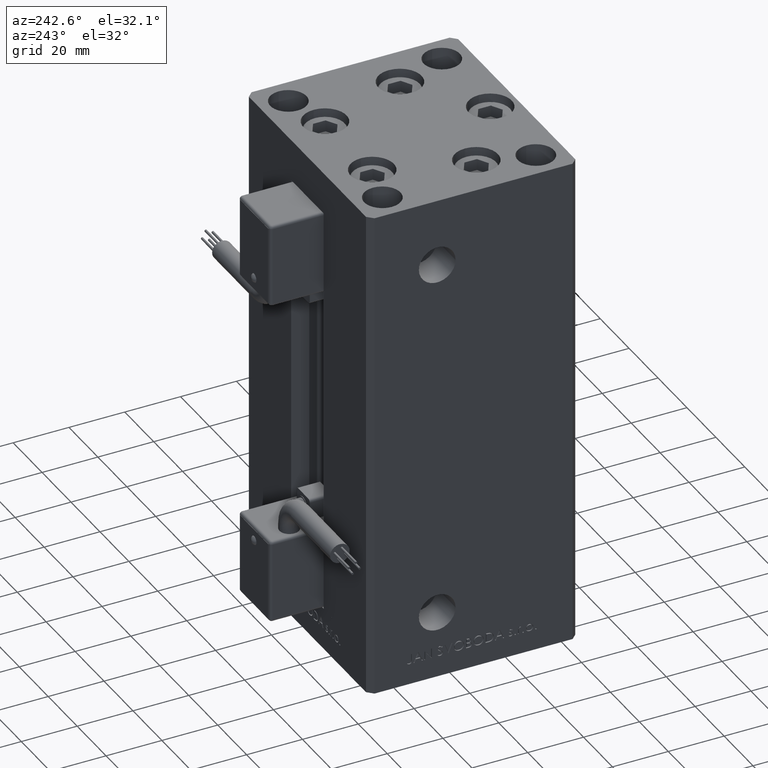
[diagram: clean part render]
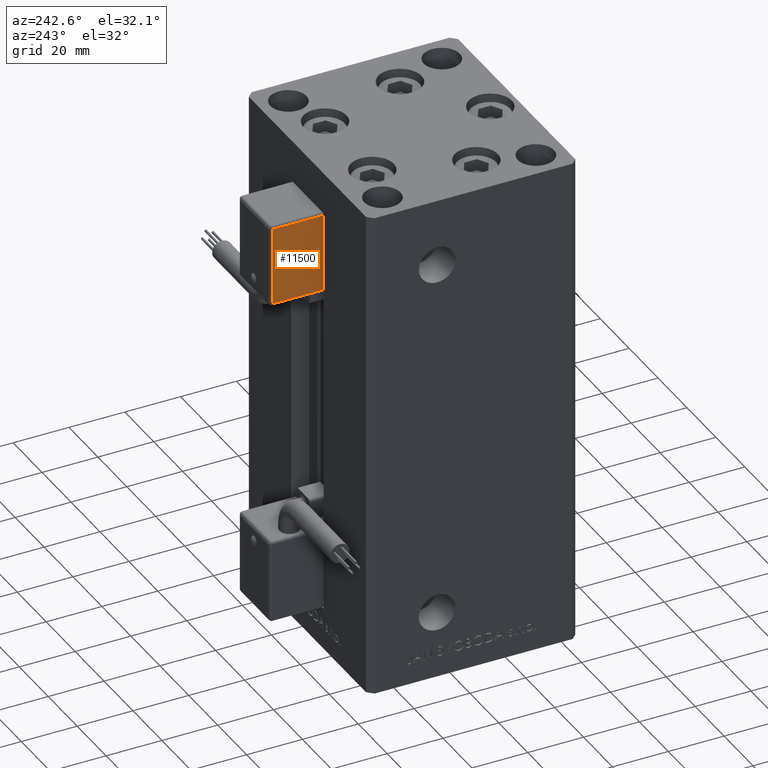
[diagram: same view with one face highlighted and labeled with its STEP entity id]
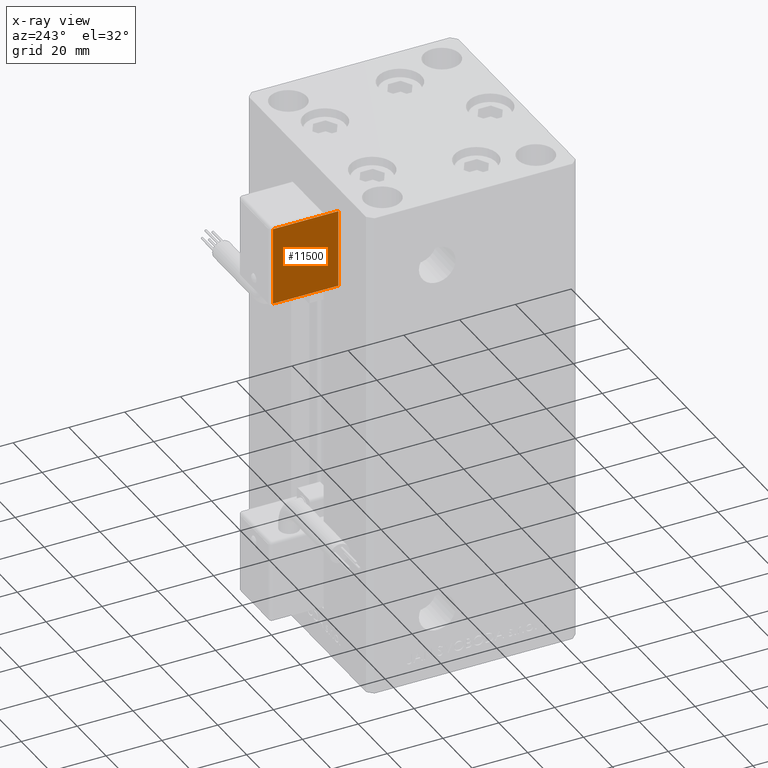
[diagram: x-ray of the same camera — body ghosted, the highlighted face saturated]
A machine part, auxiliary view. The second image highlights one B-rep face of the part: STEP entity #11500.
The next image is the same camera in x-ray: the body ghosted, the highlighted face saturated — about 0% of this face is hidden behind the body in this view.
In plain terms, the highlighted planar face has unit normal (1, 0, 0).
Its self-contained STEP definition (entity closure, byte-faithful):
#939 = ORIENTED_EDGE ( 'NONE', *, *, #18885, .T. ) ;
#1921 = CARTESIAN_POINT ( 'NONE',  ( -10.80000000000000071, 26.00000000000000000, -54.00000000000000000 ) ) ;
#2919 = VERTEX_POINT ( 'NONE', #36429 ) ;
#10824 = ORIENTED_EDGE ( 'NONE', *, *, #25612, .T. ) ;
#11125 = VECTOR ( 'NONE', #38020, 1000.000000000000000 ) ;
#11500 = ADVANCED_FACE ( 'NONE', ( #14323 ), #14586, .F. ) ;
#11527 = EDGE_CURVE ( 'NONE', #2919, #48353, #39642, .T. ) ;
#14323 = FACE_OUTER_BOUND ( 'NONE', #51347, .T. ) ;
#14586 = PLANE ( 'NONE',  #27951 ) ;
#15203 = DIRECTION ( 'NONE',  ( 3.108624468950000014E-32, -1.000000000000000000, -1.400000000000000069E-16 ) ) ;
#16022 = VECTOR ( 'NONE', #22856, 1000.000000000000000 ) ;
#17336 = DIRECTION ( 'NONE',  ( -3.108624468950000014E-32, 1.000000000000000000, 1.400000000000000069E-16 ) ) ;
#18086 = VERTEX_POINT ( 'NONE', #42350 ) ;
#18203 = ORIENTED_EDGE ( 'NONE', *, *, #11527, .T. ) ;
#18885 = EDGE_CURVE ( 'NONE', #23896, #18086, #29767, .T. ) ;
#21337 = CARTESIAN_POINT ( 'NONE',  ( -10.80000000000000071, 26.00000000000000000, -26.00000000000000000 ) ) ;
#22856 = DIRECTION ( 'NONE',  ( -2.220446049250000002E-16, -1.200000000000000024E-16, 1.000000000000000000 ) ) ;
#23896 = VERTEX_POINT ( 'NONE', #33367 ) ;
#24302 = VECTOR ( 'NONE', #17336, 1000.000000000000000 ) ;
#25337 = LINE ( 'NONE', #21337, #24302 ) ;
#25612 = EDGE_CURVE ( 'NONE', #18086, #2919, #30409, .T. ) ;
#27381 = CARTESIAN_POINT ( 'NONE',  ( -10.80000000000000071, 26.00000000000000000, -55.00000000000000000 ) ) ;
#27417 = VECTOR ( 'NONE', #15203, 1000.000000000000000 ) ;
#27951 = AXIS2_PLACEMENT_3D ( 'NONE', #27381, #30851, #43644 ) ;
#29767 = LINE ( 'NONE', #42003, #11125 ) ;
#30409 = LINE ( 'NONE', #1921, #27417 ) ;
#30851 = DIRECTION ( 'NONE',  ( 1.000000000000000000, 4.930380657629929601E-32, 1.094764425253299406E-47 ) ) ;
#33170 = ORIENTED_EDGE ( 'NONE', *, *, #49680, .T. ) ;
#33198 = CARTESIAN_POINT ( 'NONE',  ( -10.80000000000000071, 27.00000000000000000, -26.00000000000000000 ) ) ;
#33367 = CARTESIAN_POINT ( 'NONE',  ( -10.80000000000000071, 50.50000000000000000, -26.00000000000000000 ) ) ;
#36429 = CARTESIAN_POINT ( 'NONE',  ( -10.80000000000000071, 27.00000000000000000, -54.00000000000000000 ) ) ;
#38020 = DIRECTION ( 'NONE',  ( 2.220446049250000002E-16, 1.200000000000000024E-16, -1.000000000000000000 ) ) ;
#39642 = LINE ( 'NONE', #51359, #16022 ) ;
#42003 = CARTESIAN_POINT ( 'NONE',  ( -10.80000000000000071, 50.50000000000000000, -55.00000000000000000 ) ) ;
#42350 = CARTESIAN_POINT ( 'NONE',  ( -10.80000000000000071, 50.50000000000000000, -54.00000000000000000 ) ) ;
#43644 = DIRECTION ( 'NONE',  ( 0.000000000000000000, -2.220446049250000002E-16, 1.000000000000000000 ) ) ;
#48353 = VERTEX_POINT ( 'NONE', #33198 ) ;
#49680 = EDGE_CURVE ( 'NONE', #48353, #23896, #25337, .T. ) ;
#51347 = EDGE_LOOP ( 'NONE', ( #33170, #939, #10824, #18203 ) ) ;
#51359 = CARTESIAN_POINT ( 'NONE',  ( -10.80000000000000071, 27.00000000000000000, -55.00000000000000000 ) ) ;